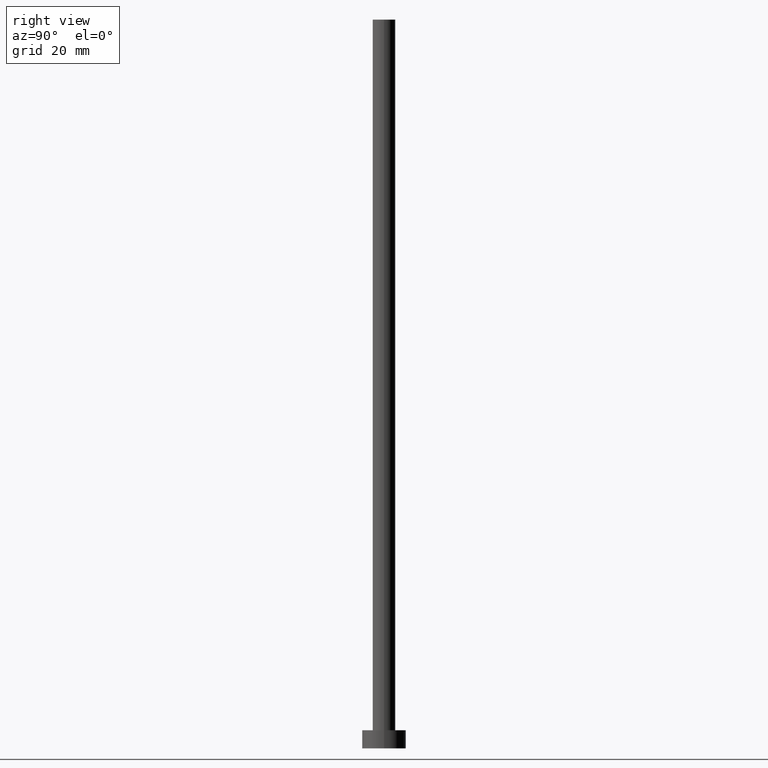
[diagram: clean part render]
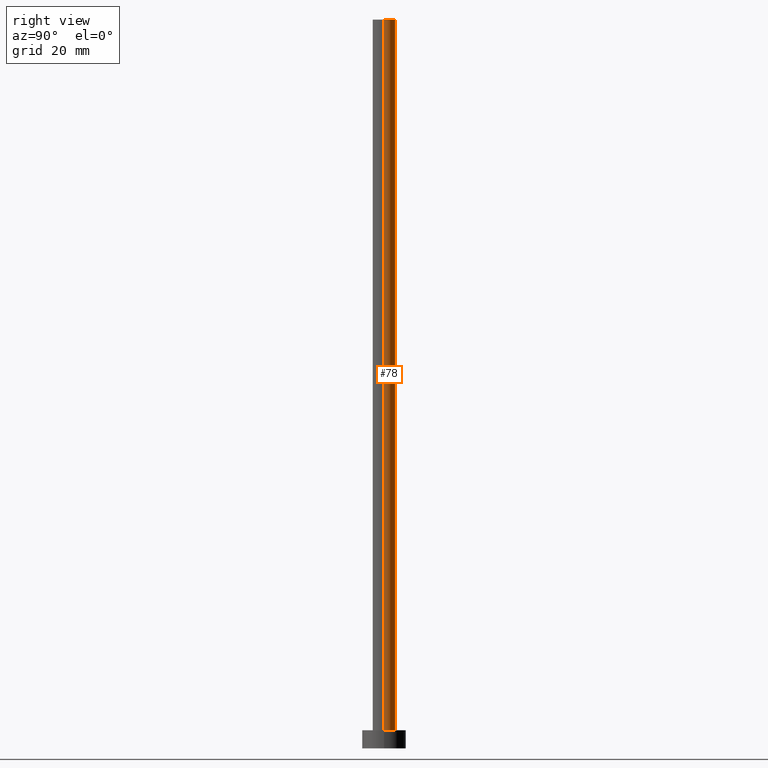
[diagram: same view with one face highlighted and labeled with its STEP entity id]
A machine part, right view. The second image highlights one B-rep face of the part: STEP entity #78.
In plain terms, the highlighted cylindrical surface (edge-blend (fillet) strip) has radius 3.1 mm, axis along (-0, -0, -1).
Its self-contained STEP definition (entity closure, byte-faithful):
#1 = VERTEX_POINT ( 'NONE', #45 ) ;
#4 = VERTEX_POINT ( 'NONE', #49 ) ;
#12 = CARTESIAN_POINT ( 'NONE',  ( -3.100000000000000089, 0.000000000000000000, 5.000000000000000000 ) ) ;
#18 = CIRCLE ( 'NONE', #96, 3.100000000000000089 ) ;
#44 = VECTOR ( 'NONE', #192, 1000.000000000000000 ) ;
#45 = CARTESIAN_POINT ( 'NONE',  ( 3.100000000000000089, 3.796405077356794918E-16, 5.000000000000000000 ) ) ;
#49 = CARTESIAN_POINT ( 'NONE',  ( -3.100000000000000089, 0.000000000000000000, 200.0000000000000000 ) ) ;
#62 = AXIS2_PLACEMENT_3D ( 'NONE', #190, #195, #109 ) ;
#70 = EDGE_CURVE ( 'NONE', #1, #122, #210, .T. ) ;
#71 = LINE ( 'NONE', #111, #44 ) ;
#73 = CARTESIAN_POINT ( 'NONE',  ( 0.000000000000000000, 0.000000000000000000, 200.0000000000000000 ) ) ;
#78 = ADVANCED_FACE ( 'NONE', ( #157 ), #248, .T. ) ;
#79 = AXIS2_PLACEMENT_3D ( 'NONE', #73, #191, #250 ) ;
#80 = VECTOR ( 'NONE', #116, 1000.000000000000000 ) ;
#83 = ORIENTED_EDGE ( 'NONE', *, *, #144, .F. ) ;
#94 = CARTESIAN_POINT ( 'NONE',  ( 3.100000000000000089, 3.796405077356794918E-16, 200.0000000000000000 ) ) ;
#96 = AXIS2_PLACEMENT_3D ( 'NONE', #131, #135, #175 ) ;
#105 = ORIENTED_EDGE ( 'NONE', *, *, #182, .F. ) ;
#109 = DIRECTION ( 'NONE',  ( 1.000000000000000000, 0.000000000000000000, 0.000000000000000000 ) ) ;
#111 = CARTESIAN_POINT ( 'NONE',  ( 3.100000000000000089, 3.796405077356794918E-16, 200.0000000000000000 ) ) ;
#116 = DIRECTION ( 'NONE',  ( -0.000000000000000000, -0.000000000000000000, -1.000000000000000000 ) ) ;
#122 = VERTEX_POINT ( 'NONE', #12 ) ;
#131 = CARTESIAN_POINT ( 'NONE',  ( 0.000000000000000000, 0.000000000000000000, 200.0000000000000000 ) ) ;
#135 = DIRECTION ( 'NONE',  ( 0.000000000000000000, 0.000000000000000000, 1.000000000000000000 ) ) ;
#144 = EDGE_CURVE ( 'NONE', #201, #4, #18, .T. ) ;
#152 = LINE ( 'NONE', #205, #80 ) ;
#157 = FACE_OUTER_BOUND ( 'NONE', #204, .T. ) ;
#163 = ORIENTED_EDGE ( 'NONE', *, *, #241, .T. ) ;
#175 = DIRECTION ( 'NONE',  ( 1.000000000000000000, 0.000000000000000000, 0.000000000000000000 ) ) ;
#182 = EDGE_CURVE ( 'NONE', #4, #122, #152, .T. ) ;
#190 = CARTESIAN_POINT ( 'NONE',  ( 0.000000000000000000, 0.000000000000000000, 5.000000000000000000 ) ) ;
#191 = DIRECTION ( 'NONE',  ( -0.000000000000000000, -0.000000000000000000, -1.000000000000000000 ) ) ;
#192 = DIRECTION ( 'NONE',  ( -0.000000000000000000, -0.000000000000000000, -1.000000000000000000 ) ) ;
#195 = DIRECTION ( 'NONE',  ( 0.000000000000000000, 0.000000000000000000, 1.000000000000000000 ) ) ;
#201 = VERTEX_POINT ( 'NONE', #94 ) ;
#204 = EDGE_LOOP ( 'NONE', ( #83, #163, #223, #105 ) ) ;
#205 = CARTESIAN_POINT ( 'NONE',  ( -3.100000000000000089, 0.000000000000000000, 200.0000000000000000 ) ) ;
#210 = CIRCLE ( 'NONE', #62, 3.100000000000000089 ) ;
#223 = ORIENTED_EDGE ( 'NONE', *, *, #70, .T. ) ;
#241 = EDGE_CURVE ( 'NONE', #201, #1, #71, .T. ) ;
#248 = CYLINDRICAL_SURFACE ( 'NONE', #79, 3.100000000000000089 ) ;
#250 = DIRECTION ( 'NONE',  ( -1.000000000000000000, 0.000000000000000000, 0.000000000000000000 ) ) ;